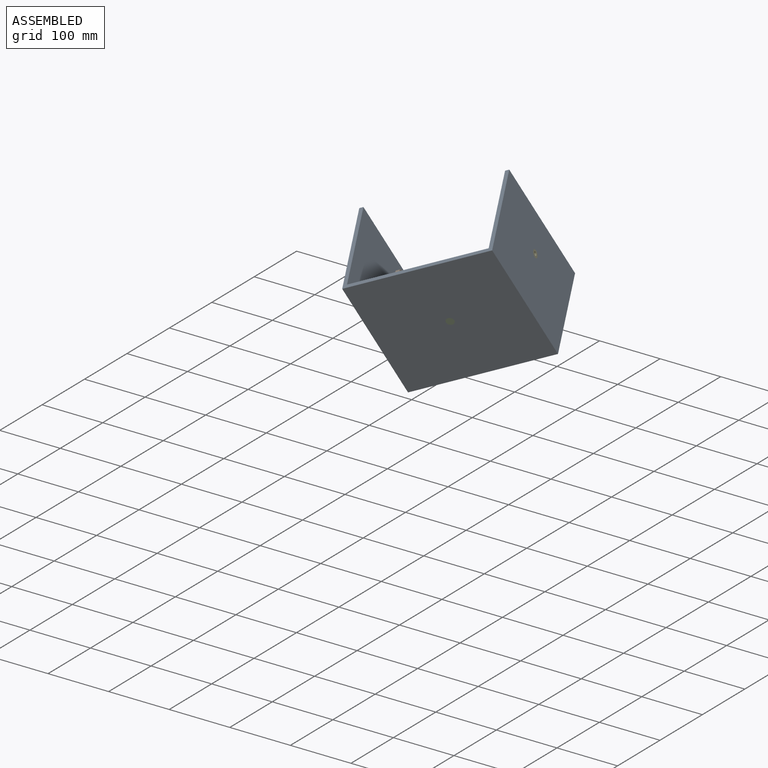
[diagram: assembled view]
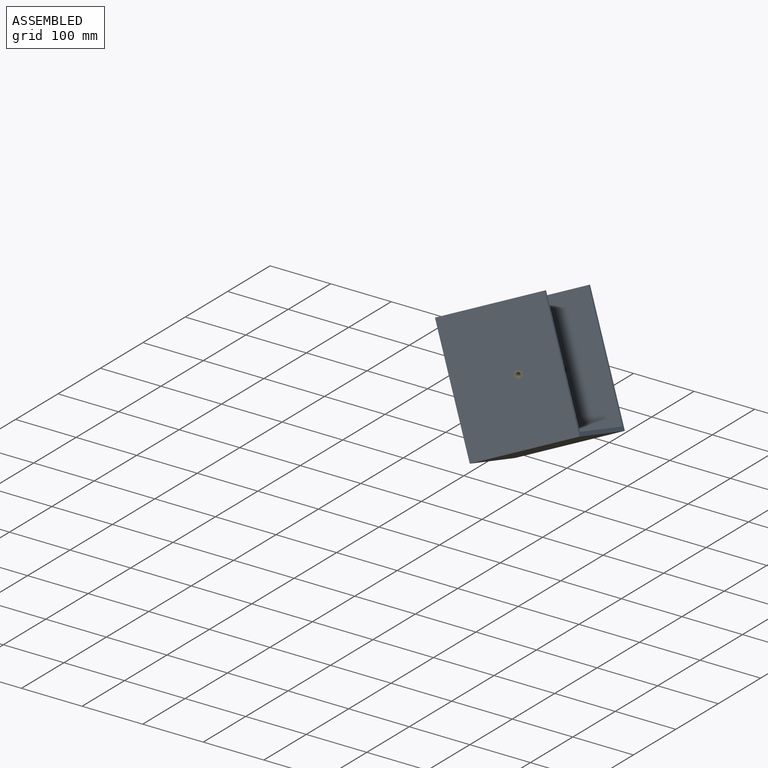
[diagram: assembled view, second angle]
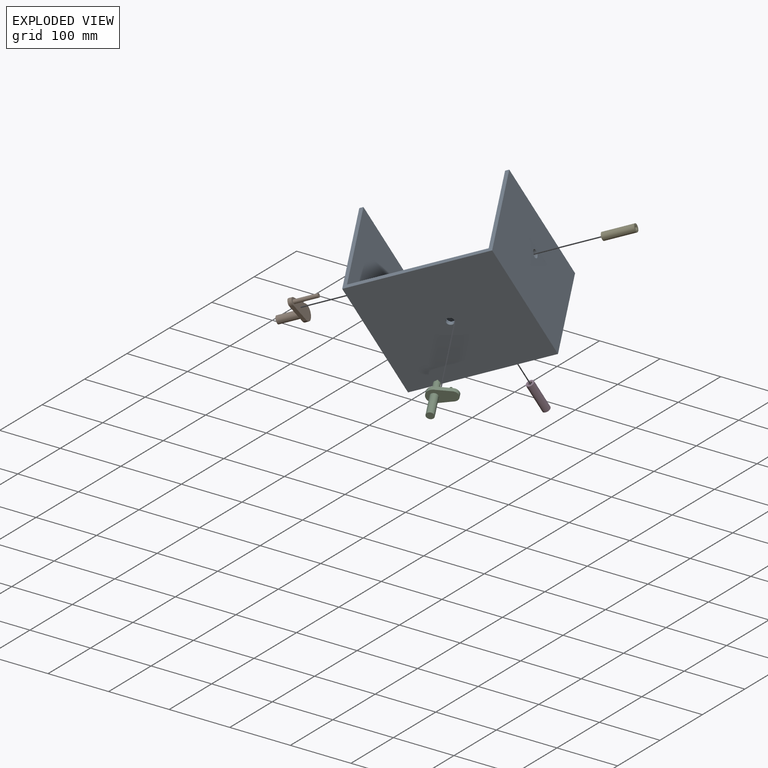
[diagram: exploded view]
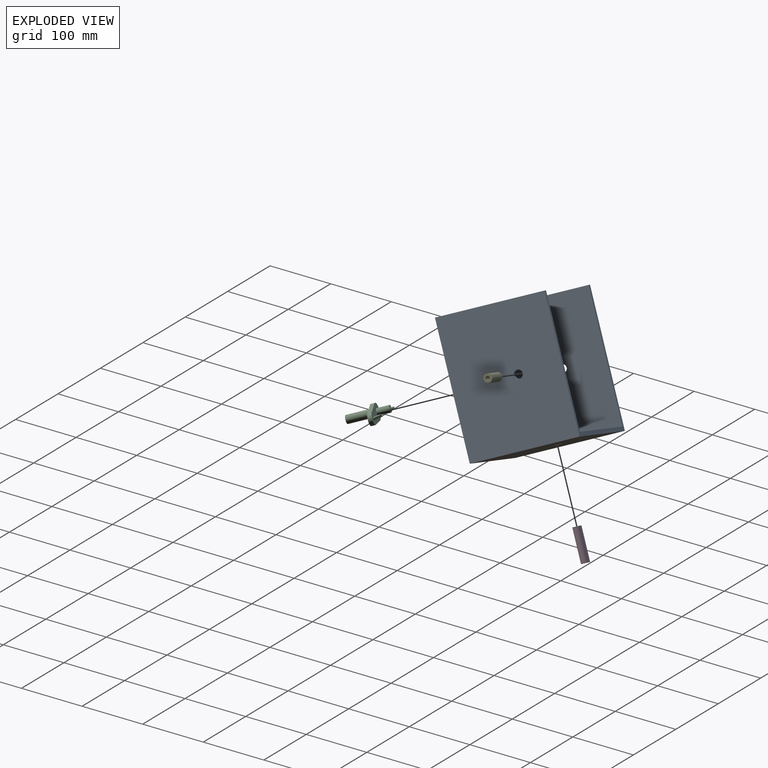
[diagram: exploded view, second angle]
ASSEMBLY  parts=5 mates=4
PART A: 14 faces, bbox 203.2x228.6x158.8 mm
  f0: plane 215.9x196.85mm, normal (0,0,1), area 42373.2mm2, adj f4,f6,f7,f8,f11
  f1: plane 203.2x158.75mm, normal (0,1,0), area 32131.3mm2, adj f2,f4,f5,f9,f12
  f2: plane 228.6x158.75mm, normal (-1,0,0), area 36163.6mm2, adj f1,f3,f5,f9,f13
  f3: plane 203.2x158.75mm, normal (0,-1,0), area 32131.3mm2, adj f2,f4,f5,f9,f10
  f4: plane 228.6x158.75mm, normal (1,0,0), area 3387.1mm2, adj f0,f1,f3,f5,f6,f8,f9
  f5: plane 228.6x203.2mm, normal (0,0,-1), area 46324.8mm2, adj f1,f2,f3,f4,f11
  f6: plane 196.85x152.4mm, normal (0,1,0), area 29873.3mm2, adj f0,f4,f7,f9,f10
  f7: plane 215.9x152.4mm, normal (1,0,0), area 32776.5mm2, adj f0,f6,f8,f9,f13
  f8: plane 196.85x152.4mm, normal (0,-1,0), area 29873.3mm2, adj f0,f4,f7,f9,f12
  f9: plane 228.6x203.2mm, normal (0,0,1), area 3951.6mm2, adj f1,f2,f3,f4,f6,f7,f8
  f10: cylinder r=6.35mm len=12.7mm, axis (0,-1,0), area 253.4mm2, adj f3,f6
  f11: cylinder r=6.35mm len=12.7mm, axis (0,0,1), area 253.4mm2, adj f0,f5
  f12: cylinder r=6.35mm len=12.7mm, axis (0,1,0), area 253.4mm2, adj f1,f8
  f13: cylinder r=6.35mm len=12.7mm, axis (-1,0,0), area 253.4mm2, adj f2,f7
PART B: 12 faces, bbox 57.2x25.4x82.6 mm
  f0: cylinder r=12.7mm len=25.4mm, axis (0,0,-1), area 279.6mm2, adj f1,f5,f6,f7
  f1: plane 35.06x6.35mm, normal (0.16,-0.99,0), area 225.6mm2, adj f0,f2,f6,f7
  f2: cylinder r=6.35mm len=12.62mm, axis (0,0,-1), area 120.1mm2, adj f1,f3,f6,f7
  f3: plane 33.98x6.35mm, normal (0.16,0.99,0), area 218.8mm2, adj f2,f4,f6,f7
  f4: cylinder r=12.7mm len=6.35mm, axis (0,0,-1), area 14.5mm2, adj f3,f5,f6,f7
  f5: plane 6.35x1.91mm, normal (0.08,1,0), area 12.2mm2, adj f0,f4,f6,f7
  f6: plane 57.15x25.4mm, normal (0,0,1), area 918.4mm2, adj f0,f1,f2,f3,f4,f5,f8
  f7: plane 57.15x25.4mm, normal (0,0,-1), area 1013.4mm2, adj f0,f1,f2,f3,f4,f5,f10
  f8: cylinder r=6.35mm len=38.1mm, axis (0,0,-1), area 1520.1mm2, adj f6,f9
  f9: plane 12.7x12.7mm, normal (0,0,1), area 126.7mm2, adj f8
  f10: cylinder r=3.17mm len=38.1mm, axis (0,0,1), area 760.1mm2, adj f7,f11
  f11: plane 6.35x6.35mm, normal (0,0,-1), area 31.7mm2, adj f10
PART C: 20 faces, bbox 47.6x25.4x68.6 mm
  f0: cylinder r=12.7mm len=25.4mm, axis (0,0,-1), area 293.5mm2, adj f1,f3,f4,f5
  f1: plane 22.27x6.35mm, normal (0.12,-0.99,0), area 142.5mm2, adj f0,f2,f4,f5
  f2: cylinder r=9.53mm len=19.05mm, axis (0,0,-1), area 190mm2, adj f1,f3,f4,f5
  f3: plane 22.27x6.35mm, normal (0.12,0.99,0), area 142.5mm2, adj f0,f2,f4,f5
  f4: plane 47.63x25.4mm, normal (0,0,1), area 834.1mm2, adj f0,f1,f2,f3,f6
  f5: plane 47.63x25.4mm, normal (0,0,-1), area 854.6mm2, adj f0,f1,f2,f3,f8,f14,f16,f17
  f6: cylinder r=6.35mm len=38.1mm, axis (0,0,-1), area 1520.1mm2, adj f4,f7
  f7: plane 12.7x12.7mm, normal (0,0,1), area 126.7mm2, adj f6
  f8: cylinder r=5.35mm len=19.05mm, axis (0,0,1), area 640.7mm2, adj f5,f9
  f9: plane 10.71x10.71mm, normal (0,0,-1), area 78.6mm2, adj f8,f10
  f10: cylinder r=1.91mm len=5.08mm, axis (0,0,1), area 60.8mm2, adj f9,f11
  f11: plane 3.81x3.81mm, normal (0,0,-1), area 10.1mm2, adj f10,f12
  f12: cylinder r=0.64mm len=2.54mm, axis (0,0,-1), area 10.1mm2, adj f11,f13
  f13: plane 1.27x1.27mm, normal (0,0,-1), area 1.3mm2, adj f12
  f14: plane 7.39x5.81mm, normal (-0.79,0,0.62), area 29.9mm2, adj f5,f15,f17,f18
  f15: cylinder r=2mm len=3.58mm, axis (0,1,0), area 20mm2, adj f14,f16,f17,f18
  f16: plane 9.87x7.76mm, normal (0.79,0,-0.62), area 39.9mm2, adj f5,f15,f17,f18
  f17: plane 11.34x10.63mm, normal (0,-1,0), area 45.2mm2, adj f5,f14,f15,f16,f19
  f18: plane 11.34x10.63mm, normal (0,1,0), area 45.2mm2, adj f5,f14,f15,f16,f19
  f19: cylinder r=1.27mm len=3.18mm, axis (0,-1,0), area 25.3mm2, adj f17,f18
PART D: 4 faces, bbox 12.7x12.7x50.8 mm
  f0: cylinder r=6.35mm len=50.8mm, axis (0,0,-1), area 2026.8mm2, adj f1,f2
  f1: plane 12.7x12.7mm, normal (0,0,1), area 95mm2, adj f0,f3
  f2: plane 12.7x12.7mm, normal (0,0,-1), area 95mm2, adj f0,f3
  f3: cylinder r=3.17mm len=50.8mm, axis (0,0,-1), area 1013.4mm2, adj f1,f2
PART E: same geometry as D
PLACE A rot(axis=(-0.25,-0.68,-0.69),107.9deg) t=(-898.97,362.55,-793.33)mm
PLACE B rot(axis=(0.5,-0.86,-0.14),113.8deg) t=(-1079.37,434.51,-920.72)mm
PLACE C rot(axis=(0.97,0.18,0.19),111.9deg) t=(-996.69,411.56,-910.86)mm
PLACE D rot(axis=(0.62,-0.5,0.61),37.7deg) t=(-994.39,498.46,-983.1)mm
PLACE E rot(axis=(-0.73,-0.4,0.55),168.1deg) t=(-917.27,487.78,-851.47)mm
MATE revolute A.f11 <-> C.f6  axis (-0.42,0.85,0.32) through (-978.15,373.8,-925.21)mm
MATE revolute B.f8 <-> A.f10  axis (0.88,0.29,0.38) through (-1118.5,421.65,-937.44)mm
MATE revolute A.f13 <-> D.f0  axis (0.23,0.44,-0.87) through (-994.39,498.46,-983.1)mm
MATE revolute A.f10 <-> E.f0  axis (0.88,0.29,0.38) through (-917.27,487.78,-851.47)mm
